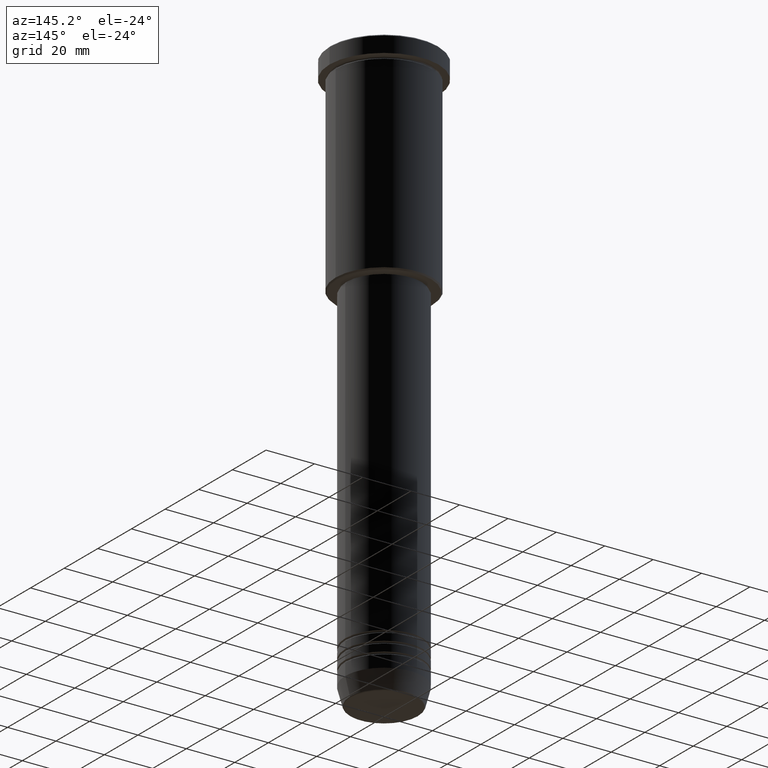
[diagram: clean part render]
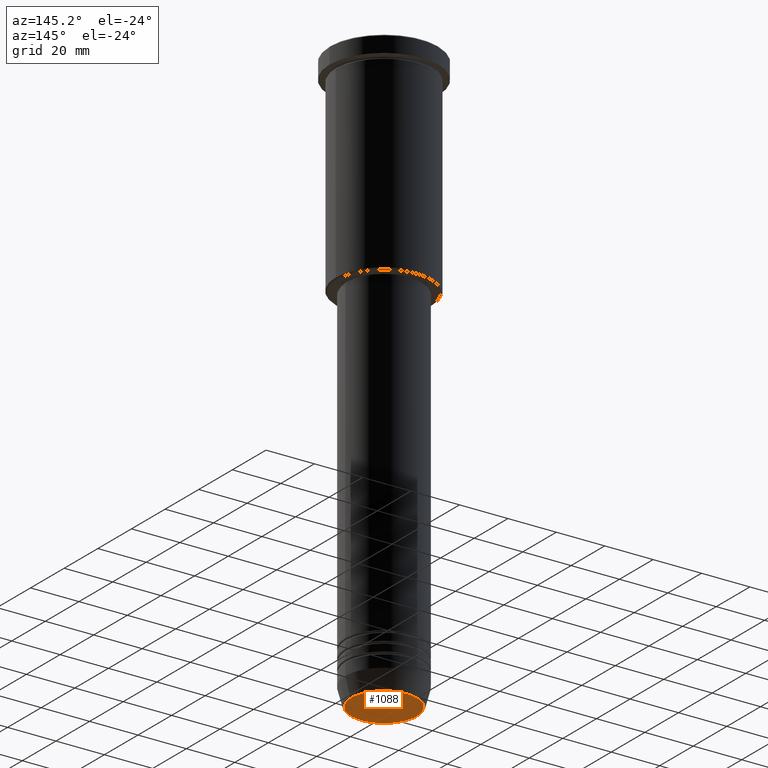
[diagram: same view with one face highlighted and labeled with its STEP entity id]
A machine part, auxiliary view. The second image highlights one B-rep face of the part: STEP entity #1088.
In plain terms, the highlighted planar face has unit normal (0, -0, 1).
Its self-contained STEP definition (entity closure, byte-faithful):
#8 = CARTESIAN_POINT ( 'NONE',  ( 0.000000000000000000, 0.000000000000000000, -240.0000000000000000 ) ) ;
#31 = PLANE ( 'NONE',  #149 ) ;
#36 = DIRECTION ( 'NONE',  ( 1.000000000000000000, 0.000000000000000000, 0.000000000000000000 ) ) ;
#50 = EDGE_CURVE ( 'NONE', #538, #144, #830, .T. ) ;
#74 = AXIS2_PLACEMENT_3D ( 'NONE', #911, #309, #121 ) ;
#121 = DIRECTION ( 'NONE',  ( 1.000000000000000000, 0.000000000000000000, 0.000000000000000000 ) ) ;
#144 = VERTEX_POINT ( 'NONE', #508 ) ;
#149 = AXIS2_PLACEMENT_3D ( 'NONE', #389, #841, #36 ) ;
#157 = EDGE_CURVE ( 'NONE', #144, #538, #847, .T. ) ;
#175 = DIRECTION ( 'NONE',  ( 1.000000000000000000, 0.000000000000000000, 0.000000000000000000 ) ) ;
#185 = ORIENTED_EDGE ( 'NONE', *, *, #157, .T. ) ;
#309 = DIRECTION ( 'NONE',  ( 0.000000000000000000, 0.000000000000000000, -1.000000000000000000 ) ) ;
#310 = FACE_OUTER_BOUND ( 'NONE', #840, .T. ) ;
#387 = ORIENTED_EDGE ( 'NONE', *, *, #50, .T. ) ;
#389 = CARTESIAN_POINT ( 'NONE',  ( 0.000000000000000000, 0.000000000000000000, -240.0000000000000000 ) ) ;
#398 = AXIS2_PLACEMENT_3D ( 'NONE', #8, #1002, #175 ) ;
#400 = CARTESIAN_POINT ( 'NONE',  ( 13.60671756277710109, 0.000000000000000000, -240.0000000000000000 ) ) ;
#508 = CARTESIAN_POINT ( 'NONE',  ( -13.60671756277710109, 1.695915260300172047E-15, -240.0000000000000000 ) ) ;
#538 = VERTEX_POINT ( 'NONE', #400 ) ;
#830 = CIRCLE ( 'NONE', #398, 13.60671756277710109 ) ;
#840 = EDGE_LOOP ( 'NONE', ( #387, #185 ) ) ;
#841 = DIRECTION ( 'NONE',  ( 0.000000000000000000, -0.000000000000000000, 1.000000000000000000 ) ) ;
#847 = CIRCLE ( 'NONE', #74, 13.60671756277710109 ) ;
#911 = CARTESIAN_POINT ( 'NONE',  ( 0.000000000000000000, 0.000000000000000000, -240.0000000000000000 ) ) ;
#1002 = DIRECTION ( 'NONE',  ( 0.000000000000000000, 0.000000000000000000, -1.000000000000000000 ) ) ;
#1088 = ADVANCED_FACE ( 'NONE', ( #310 ), #31, .F. ) ;